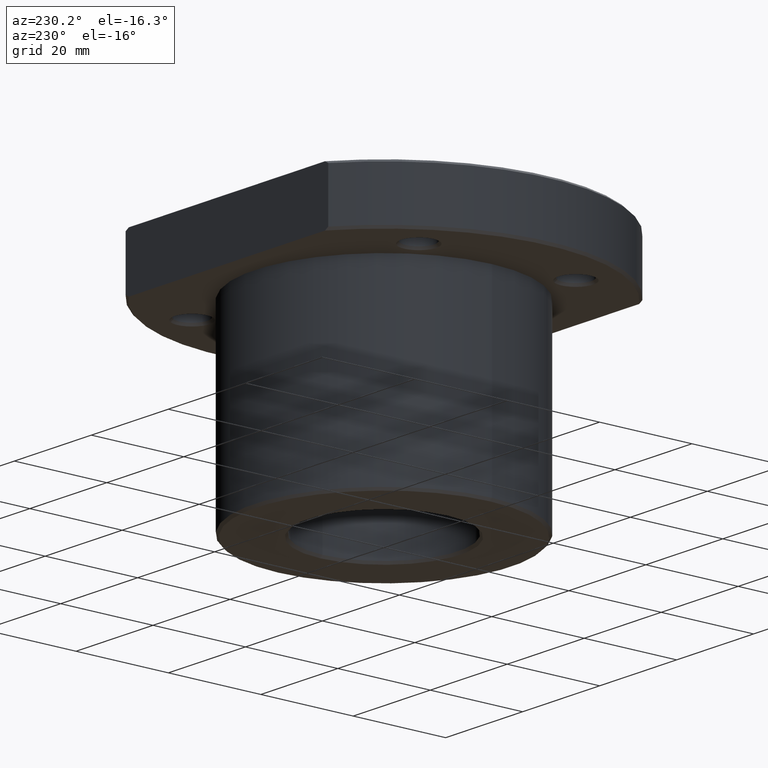
[diagram: clean part render]
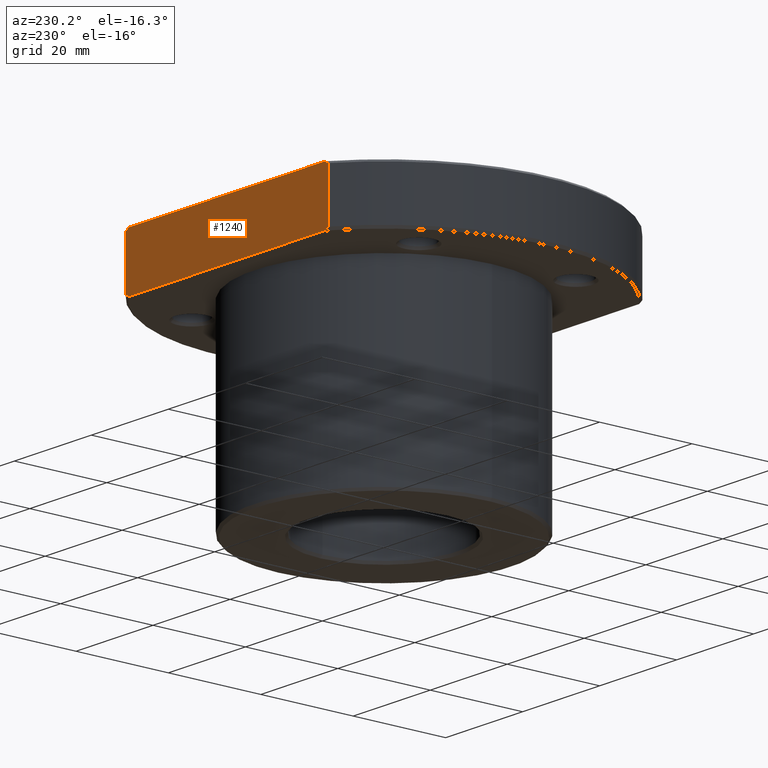
[diagram: same view with one face highlighted and labeled with its STEP entity id]
A machine part, auxiliary view. The second image highlights one B-rep face of the part: STEP entity #1240.
In plain terms, the highlighted planar face has unit normal (0, -1, 0).
Its self-contained STEP definition (entity closure, byte-faithful):
#1220=AXIS2_PLACEMENT_3D('Plane Axis2P3D',#1217,#1218,#1219) ;
#956=CARTESIAN_POINT('Vertex',(25.5,34.,53.)) ;
#971=CARTESIAN_POINT('Vertex',(26.3248931622,34.,52.5)) ;
#975=CARTESIAN_POINT('Control Point',(26.3248931622,34.,52.5)) ;
#976=CARTESIAN_POINT('Control Point',(26.0484811876,34.,52.6692212953)) ;
#977=CARTESIAN_POINT('Control Point',(25.7735072975,34.0000000812,52.8358955572)) ;
#978=CARTESIAN_POINT('Control Point',(25.4999998918,34.0000000812,53.)) ;
#992=CARTESIAN_POINT('Line Origine',(26.3248931622,34.,47.)) ;
#996=CARTESIAN_POINT('Vertex',(26.3248931622,34.,41.5)) ;
#1024=CARTESIAN_POINT('Control Point',(26.3248932676,33.9999999184,41.5)) ;
#1025=CARTESIAN_POINT('Control Point',(26.0484812937,33.9999999184,41.3307787044)) ;
#1026=CARTESIAN_POINT('Control Point',(25.773507405,34.,41.164104443)) ;
#1027=CARTESIAN_POINT('Control Point',(25.5,34.,41.)) ;
#1028=CARTESIAN_POINT('Vertex',(25.5,34.,41.)) ;
#1063=CARTESIAN_POINT('Line Origine',(3.5527136788E-015,34.,53.)) ;
#1067=CARTESIAN_POINT('Vertex',(-25.5,34.,53.)) ;
#1108=CARTESIAN_POINT('Control Point',(-26.3248931622,34.,52.5)) ;
#1109=CARTESIAN_POINT('Control Point',(-26.0484811455,34.,52.6692213211)) ;
#1110=CARTESIAN_POINT('Control Point',(-25.7735072112,34.0000001771,52.8358955332)) ;
#1111=CARTESIAN_POINT('Control Point',(-25.4999997639,34.0000001771,53.)) ;
#1112=CARTESIAN_POINT('Vertex',(-26.3248931622,34.,52.5)) ;
#1144=CARTESIAN_POINT('Vertex',(-25.5,34.,41.)) ;
#1149=CARTESIAN_POINT('Line Origine',(3.5527136788E-015,34.,41.)) ;
#1198=CARTESIAN_POINT('Line Origine',(-26.3248931622,34.,47.)) ;
#1202=CARTESIAN_POINT('Vertex',(-26.3248931622,34.,41.5)) ;
#1217=CARTESIAN_POINT('Axis2P3D Location',(-26.3248931622,34.,41.)) ;
#1223=CARTESIAN_POINT('Control Point',(-26.3248931622,34.,41.5)) ;
#1224=CARTESIAN_POINT('Control Point',(-26.1590459525,34.,41.3984672066)) ;
#1225=CARTESIAN_POINT('Control Point',(-25.9936332392,34.,41.2977003099)) ;
#1226=CARTESIAN_POINT('Control Point',(-25.8286455747,34.,41.1976942678)) ;
#1227=CARTESIAN_POINT('Control Point',(-25.664104468,34.,41.0984626808)) ;
#1228=CARTESIAN_POINT('Control Point',(-25.5,34.,41.)) ;
#993=DIRECTION('Vector Direction',(0.,0.,1.)) ;
#1064=DIRECTION('Vector Direction',(1.,0.,0.)) ;
#1150=DIRECTION('Vector Direction',(1.,0.,0.)) ;
#1199=DIRECTION('Vector Direction',(0.,0.,1.)) ;
#1218=DIRECTION('Axis2P3D Direction',(0.,-1.,0.)) ;
#1219=DIRECTION('Axis2P3D XDirection',(1.,0.,0.)) ;
#994=VECTOR('Line Direction',#993,1.) ;
#1065=VECTOR('Line Direction',#1064,1.) ;
#1151=VECTOR('Line Direction',#1150,1.) ;
#1200=VECTOR('Line Direction',#1199,1.) ;
#1231=ORIENTED_EDGE('',*,*,#1229,.F.) ;
#1232=ORIENTED_EDGE('',*,*,#1204,.T.) ;
#1233=ORIENTED_EDGE('',*,*,#1114,.F.) ;
#1234=ORIENTED_EDGE('',*,*,#1069,.F.) ;
#1235=ORIENTED_EDGE('',*,*,#979,.F.) ;
#1236=ORIENTED_EDGE('',*,*,#998,.F.) ;
#1237=ORIENTED_EDGE('',*,*,#1030,.F.) ;
#1238=ORIENTED_EDGE('',*,*,#1153,.T.) ;
#1240=ADVANCED_FACE('',(#1239),#1221,.F.) ;
#974=B_SPLINE_CURVE_WITH_KNOTS('',3,(#975,#976,#977,#978),.UNSPECIFIED.,.F.,.U.,(4,4),(0.,1.9457370177),.UNSPECIFIED.) ;
#1023=B_SPLINE_CURVE_WITH_KNOTS('',3,(#1024,#1025,#1026,#1027),.UNSPECIFIED.,.F.,.U.,(4,4),(0.,1.94573701109),.UNSPECIFIED.) ;
#1107=B_SPLINE_CURVE_WITH_KNOTS('',3,(#1108,#1109,#1110,#1111),.UNSPECIFIED.,.F.,.U.,(4,4),(0.,1.94573731424),.UNSPECIFIED.) ;
#1222=B_SPLINE_CURVE_WITH_KNOTS('',5,(#1223,#1224,#1225,#1226,#1227,#1228),.UNSPECIFIED.,.F.,.U.,(6,6),(0.,1.94573730763),.UNSPECIFIED.) ;
#979=EDGE_CURVE('',#972,#957,#974,.T.) ;
#998=EDGE_CURVE('',#997,#972,#995,.T.) ;
#1030=EDGE_CURVE('',#1029,#997,#1023,.F.) ;
#1069=EDGE_CURVE('',#957,#1068,#1066,.F.) ;
#1114=EDGE_CURVE('',#1068,#1113,#1107,.F.) ;
#1153=EDGE_CURVE('',#1029,#1145,#1152,.F.) ;
#1204=EDGE_CURVE('',#1203,#1113,#1201,.T.) ;
#1229=EDGE_CURVE('',#1203,#1145,#1222,.T.) ;
#1230=EDGE_LOOP('',(#1231,#1232,#1233,#1234,#1235,#1236,#1237,#1238)) ;
#1239=FACE_OUTER_BOUND('',#1230,.T.) ;
#995=LINE('Line',#992,#994) ;
#1066=LINE('Line',#1063,#1065) ;
#1152=LINE('Line',#1149,#1151) ;
#1201=LINE('Line',#1198,#1200) ;
#1221=PLANE('Plane',#1220) ;
#957=VERTEX_POINT('',#956) ;
#972=VERTEX_POINT('',#971) ;
#997=VERTEX_POINT('',#996) ;
#1029=VERTEX_POINT('',#1028) ;
#1068=VERTEX_POINT('',#1067) ;
#1113=VERTEX_POINT('',#1112) ;
#1145=VERTEX_POINT('',#1144) ;
#1203=VERTEX_POINT('',#1202) ;